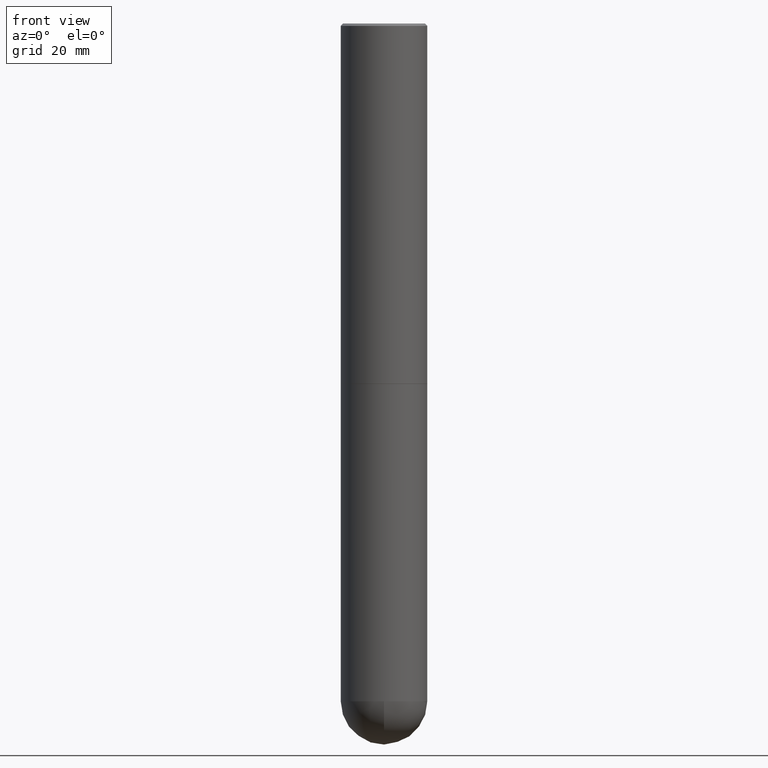
[diagram: clean part render]
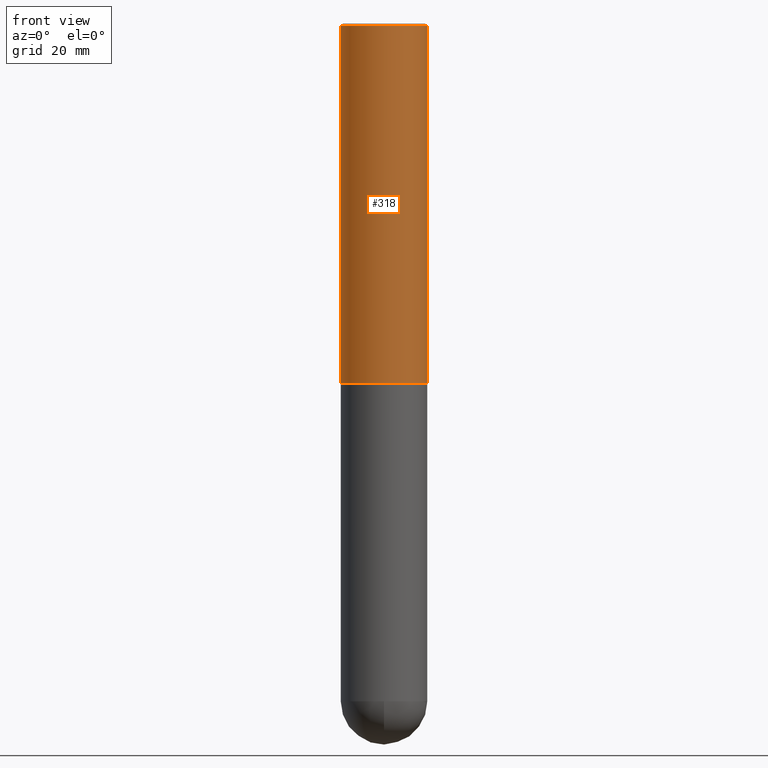
[diagram: same view with one face highlighted and labeled with its STEP entity id]
A machine part, front view. The second image highlights one B-rep face of the part: STEP entity #318.
In plain terms, the highlighted cylindrical surface (partial cylindrical patch) has radius 9.0005 mm, axis along (-0, 0, 1).
Its self-contained STEP definition (entity closure, byte-faithful):
#14 = AXIS2_PLACEMENT_3D ( 'NONE', #17, #175, #179 ) ;
#15 = ORIENTED_EDGE ( 'NONE', *, *, #26, .F. ) ;
#17 = CARTESIAN_POINT ( 'NONE',  ( 4.890937612370293302E-31, -6.982962677686318726E-17, -0.02000000000000008021 ) ) ;
#26 = EDGE_CURVE ( 'NONE', #41, #116, #259, .T. ) ;
#28 = DIRECTION ( 'NONE',  ( -2.445468806185136597E-29, 3.491481338843145583E-15, 1.000000000000000000 ) ) ;
#33 = CARTESIAN_POINT ( 'NONE',  ( 0.3543500000000002204, -2.474412824838130272E-15, 1.727873240503290870E-29 ) ) ;
#41 = VERTEX_POINT ( 'NONE', #306 ) ;
#73 = VERTEX_POINT ( 'NONE', #157 ) ;
#87 = DIRECTION ( 'NONE',  ( -2.445468806185136597E-29, 3.491481338843145583E-15, 1.000000000000000000 ) ) ;
#103 = ORIENTED_EDGE ( 'NONE', *, *, #268, .T. ) ;
#116 = VERTEX_POINT ( 'NONE', #372 ) ;
#126 = AXIS2_PLACEMENT_3D ( 'NONE', #374, #87, #338 ) ;
#130 = CIRCLE ( 'NONE', #126, 0.3543500000000004424 ) ;
#135 = VECTOR ( 'NONE', #407, 39.37007874015748143 ) ;
#157 = CARTESIAN_POINT ( 'NONE',  ( 0.3543500000000004424, -1.278021829270144662E-14, -2.951700000000000212 ) ) ;
#168 = EDGE_CURVE ( 'NONE', #73, #116, #342, .T. ) ;
#175 = DIRECTION ( 'NONE',  ( -2.445468806185136597E-29, 3.491481338843145583E-15, 1.000000000000000000 ) ) ;
#179 = DIRECTION ( 'NONE',  ( 1.000000000000000000, -6.982962677686266711E-15, 0.000000000000000000 ) ) ;
#183 = LINE ( 'NONE', #401, #377 ) ;
#222 = DIRECTION ( 'NONE',  ( -2.445468806185136877E-29, 3.491481338843145188E-15, 1.000000000000000000 ) ) ;
#238 = CYLINDRICAL_SURFACE ( 'NONE', #352, 0.3543500000000002204 ) ;
#242 = CARTESIAN_POINT ( 'NONE',  ( -0.3543500000000004424, -2.670009363154166740E-15, -2.951700000000000212 ) ) ;
#247 = CARTESIAN_POINT ( 'NONE',  ( 0.000000000000000000, 0.000000000000000000, 0.000000000000000000 ) ) ;
#257 = EDGE_LOOP ( 'NONE', ( #261, #103, #331, #15 ) ) ;
#259 = CIRCLE ( 'NONE', #14, 0.3543499999999999983 ) ;
#261 = ORIENTED_EDGE ( 'NONE', *, *, #376, .F. ) ;
#268 = EDGE_CURVE ( 'NONE', #320, #73, #130, .T. ) ;
#276 = DIRECTION ( 'NONE',  ( 1.000000000000000000, -6.982962677686266711E-15, 4.876176775795935793E-29 ) ) ;
#278 = FACE_OUTER_BOUND ( 'NONE', #257, .T. ) ;
#306 = CARTESIAN_POINT ( 'NONE',  ( -0.3543499999999999983, 2.404583198061265396E-15, -0.02000000000000008021 ) ) ;
#318 = ADVANCED_FACE ( 'NONE', ( #278 ), #238, .T. ) ;
#320 = VERTEX_POINT ( 'NONE', #242 ) ;
#331 = ORIENTED_EDGE ( 'NONE', *, *, #168, .T. ) ;
#338 = DIRECTION ( 'NONE',  ( 1.000000000000000000, -6.982962677686268288E-15, 0.000000000000000000 ) ) ;
#342 = LINE ( 'NONE', #33, #135 ) ;
#352 = AXIS2_PLACEMENT_3D ( 'NONE', #247, #28, #276 ) ;
#372 = CARTESIAN_POINT ( 'NONE',  ( 0.3543499999999999983, -2.500847092287205690E-15, -0.02000000000000008021 ) ) ;
#374 = CARTESIAN_POINT ( 'NONE',  ( 7.218290275216666916E-29, -1.030580546786331359E-14, -2.951700000000000212 ) ) ;
#376 = EDGE_CURVE ( 'NONE', #320, #41, #183, .T. ) ;
#377 = VECTOR ( 'NONE', #222, 39.37007874015748143 ) ;
#401 = CARTESIAN_POINT ( 'NONE',  ( -0.3543500000000002204, 2.517808184165916574E-15, -1.743024649231827187E-29 ) ) ;
#407 = DIRECTION ( 'NONE',  ( -2.445468806185136877E-29, 3.491481338843145188E-15, 1.000000000000000000 ) ) ;